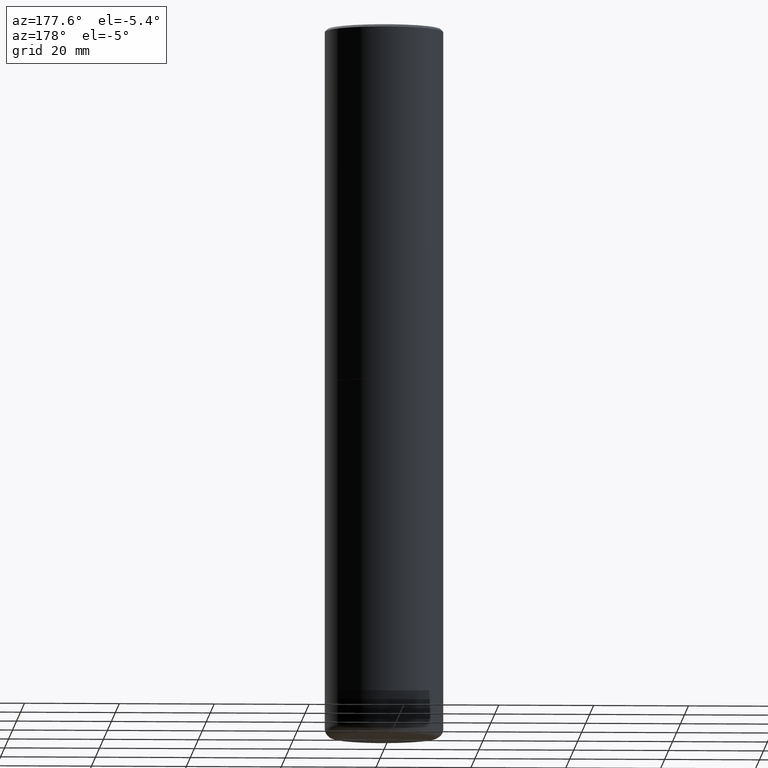
[diagram: clean part render]
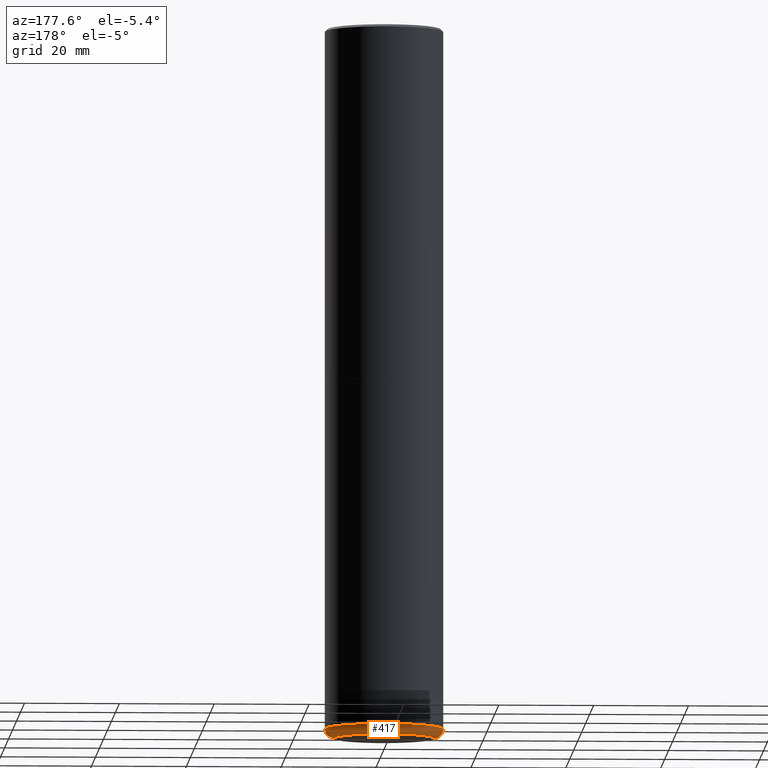
[diagram: same view with one face highlighted and labeled with its STEP entity id]
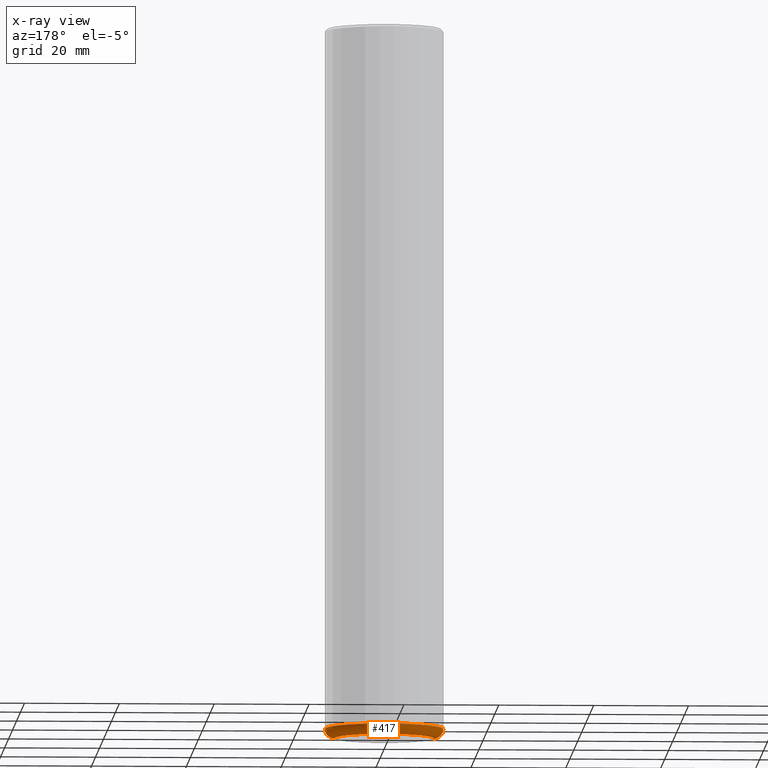
[diagram: x-ray of the same camera — body ghosted, the highlighted face saturated]
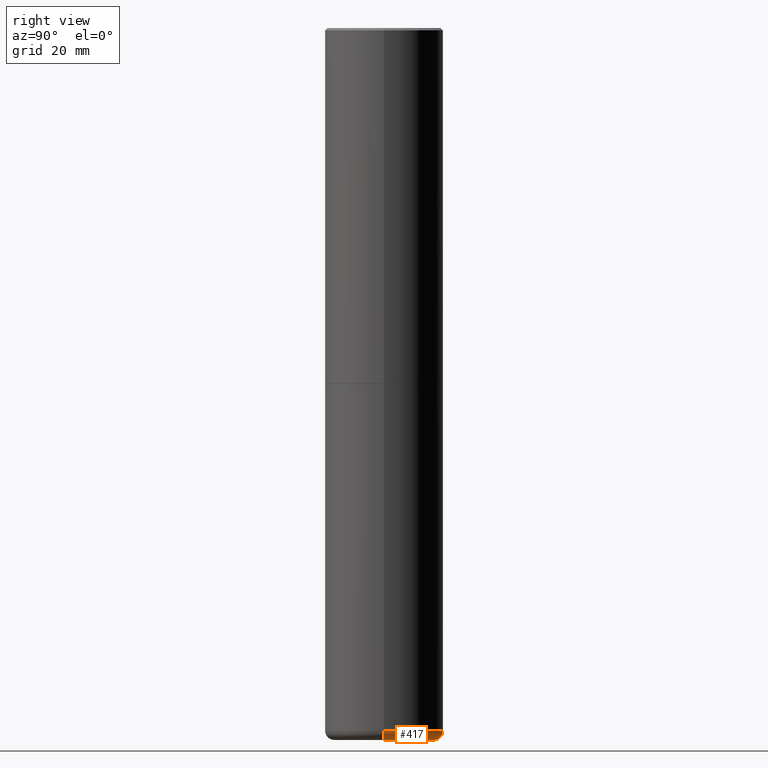
[diagram: same view with one face highlighted and labeled with its STEP entity id]
A machine part, auxiliary view. The second image highlights one B-rep face of the part: STEP entity #417.
The next image is the same camera in x-ray: the body ghosted, the highlighted face saturated — about 0% of this face is hidden behind the body in this view.
A second angle (right view) of the same face is appended — the face is thin or edge-on in the first view.
In plain terms, the highlighted toroidal blend (fillet) surface has major radius 10.5016 mm and minor (blend) radius 1.999 mm.
Its self-contained STEP definition (entity closure, byte-faithful):
#16 = CIRCLE ( 'NONE', #411, 0.4921499999999999209 ) ;
#31 = TOROIDAL_SURFACE ( 'NONE', #247, 0.4134499999999999287, 0.07870000000000021423 ) ;
#32 = CARTESIAN_POINT ( 'NONE',  ( -0.4921499999999999764, -1.684722739112790494E-14, -5.826799999999999535 ) ) ;
#40 = CARTESIAN_POINT ( 'NONE',  ( 1.424925763987955342E-28, -2.034416346517123863E-14, -5.826799999999999535 ) ) ;
#43 = ORIENTED_EDGE ( 'NONE', *, *, #124, .T. ) ;
#45 = VERTEX_POINT ( 'NONE', #144 ) ;
#49 = EDGE_LOOP ( 'NONE', ( #198, #43, #268, #138 ) ) ;
#67 = EDGE_CURVE ( 'NONE', #134, #45, #93, .T. ) ;
#76 = DIRECTION ( 'NONE',  ( -2.445468806185136597E-29, 3.491481338843145583E-15, 1.000000000000000000 ) ) ;
#78 = VERTEX_POINT ( 'NONE', #210 ) ;
#84 = DIRECTION ( 'NONE',  ( 1.000000000000000000, -6.982962677686279332E-15, 0.000000000000000000 ) ) ;
#93 = CIRCLE ( 'NONE', #319, 0.07870000000000017260 ) ;
#108 = CIRCLE ( 'NONE', #168, 0.07870000000000017260 ) ;
#124 = EDGE_CURVE ( 'NONE', #78, #351, #108, .T. ) ;
#134 = VERTEX_POINT ( 'NONE', #242 ) ;
#138 = ORIENTED_EDGE ( 'NONE', *, *, #67, .F. ) ;
#144 = CARTESIAN_POINT ( 'NONE',  ( 0.4921499999999999764, -2.378082854699453914E-14, -5.826799999999999535 ) ) ;
#168 = AXIS2_PLACEMENT_3D ( 'NONE', #405, #272, #408 ) ;
#187 = FACE_OUTER_BOUND ( 'NONE', #49, .T. ) ;
#189 = DIRECTION ( 'NONE',  ( 1.000000000000000000, -6.982962677686264344E-15, 4.883557194083111780E-29 ) ) ;
#198 = ORIENTED_EDGE ( 'NONE', *, *, #282, .T. ) ;
#210 = CARTESIAN_POINT ( 'NONE',  ( -0.4134499999999999287, -1.726421574833298258E-14, -5.905499999999999972 ) ) ;
#216 = DIRECTION ( 'NONE',  ( -2.445468806185136597E-29, 3.491481338843145583E-15, 1.000000000000000000 ) ) ;
#242 = CARTESIAN_POINT ( 'NONE',  ( 0.4134499999999999287, -2.350604896562757633E-14, -5.905499999999999972 ) ) ;
#247 = AXIS2_PLACEMENT_3D ( 'NONE', #40, #76, #189 ) ;
#252 = DIRECTION ( 'NONE',  ( 1.000000000000000000, -6.982962677686261977E-15, 0.000000000000000000 ) ) ;
#266 = DIRECTION ( 'NONE',  ( 1.000000000000000000, -6.982962677686266711E-15, 0.000000000000000000 ) ) ;
#268 = ORIENTED_EDGE ( 'NONE', *, *, #394, .F. ) ;
#272 = DIRECTION ( 'NONE',  ( 7.105427357601001859E-15, 1.000000000000000000, -3.491481338843145583E-15 ) ) ;
#282 = EDGE_CURVE ( 'NONE', #134, #78, #371, .T. ) ;
#293 = CARTESIAN_POINT ( 'NONE',  ( 1.424925763987955342E-28, -2.034416346517123863E-14, -5.826799999999999535 ) ) ;
#319 = AXIS2_PLACEMENT_3D ( 'NONE', #370, #377, #84 ) ;
#351 = VERTEX_POINT ( 'NONE', #32 ) ;
#370 = CARTESIAN_POINT ( 'NONE',  ( 0.4134499999999999287, -2.323126938426062930E-14, -5.826799999999999535 ) ) ;
#371 = CIRCLE ( 'NONE', #378, 0.4134499999999999287 ) ;
#377 = DIRECTION ( 'NONE',  ( -6.982962677686266711E-15, -1.000000000000000000, 3.491481338843145583E-15 ) ) ;
#378 = AXIS2_PLACEMENT_3D ( 'NONE', #387, #216, #252 ) ;
#387 = CARTESIAN_POINT ( 'NONE',  ( 1.444171603492632270E-28, -2.061894304653819197E-14, -5.905499999999999972 ) ) ;
#388 = DIRECTION ( 'NONE',  ( -2.445468806185136597E-29, 3.491481338843145583E-15, 1.000000000000000000 ) ) ;
#394 = EDGE_CURVE ( 'NONE', #45, #351, #16, .T. ) ;
#405 = CARTESIAN_POINT ( 'NONE',  ( -0.4134499999999999287, -1.740642452417110689E-14, -5.826799999999999535 ) ) ;
#408 = DIRECTION ( 'NONE',  ( -1.000000000000000000, 7.105427357601001859E-15, 0.000000000000000000 ) ) ;
#411 = AXIS2_PLACEMENT_3D ( 'NONE', #293, #388, #266 ) ;
#417 = ADVANCED_FACE ( 'NONE', ( #187 ), #31, .T. ) ;